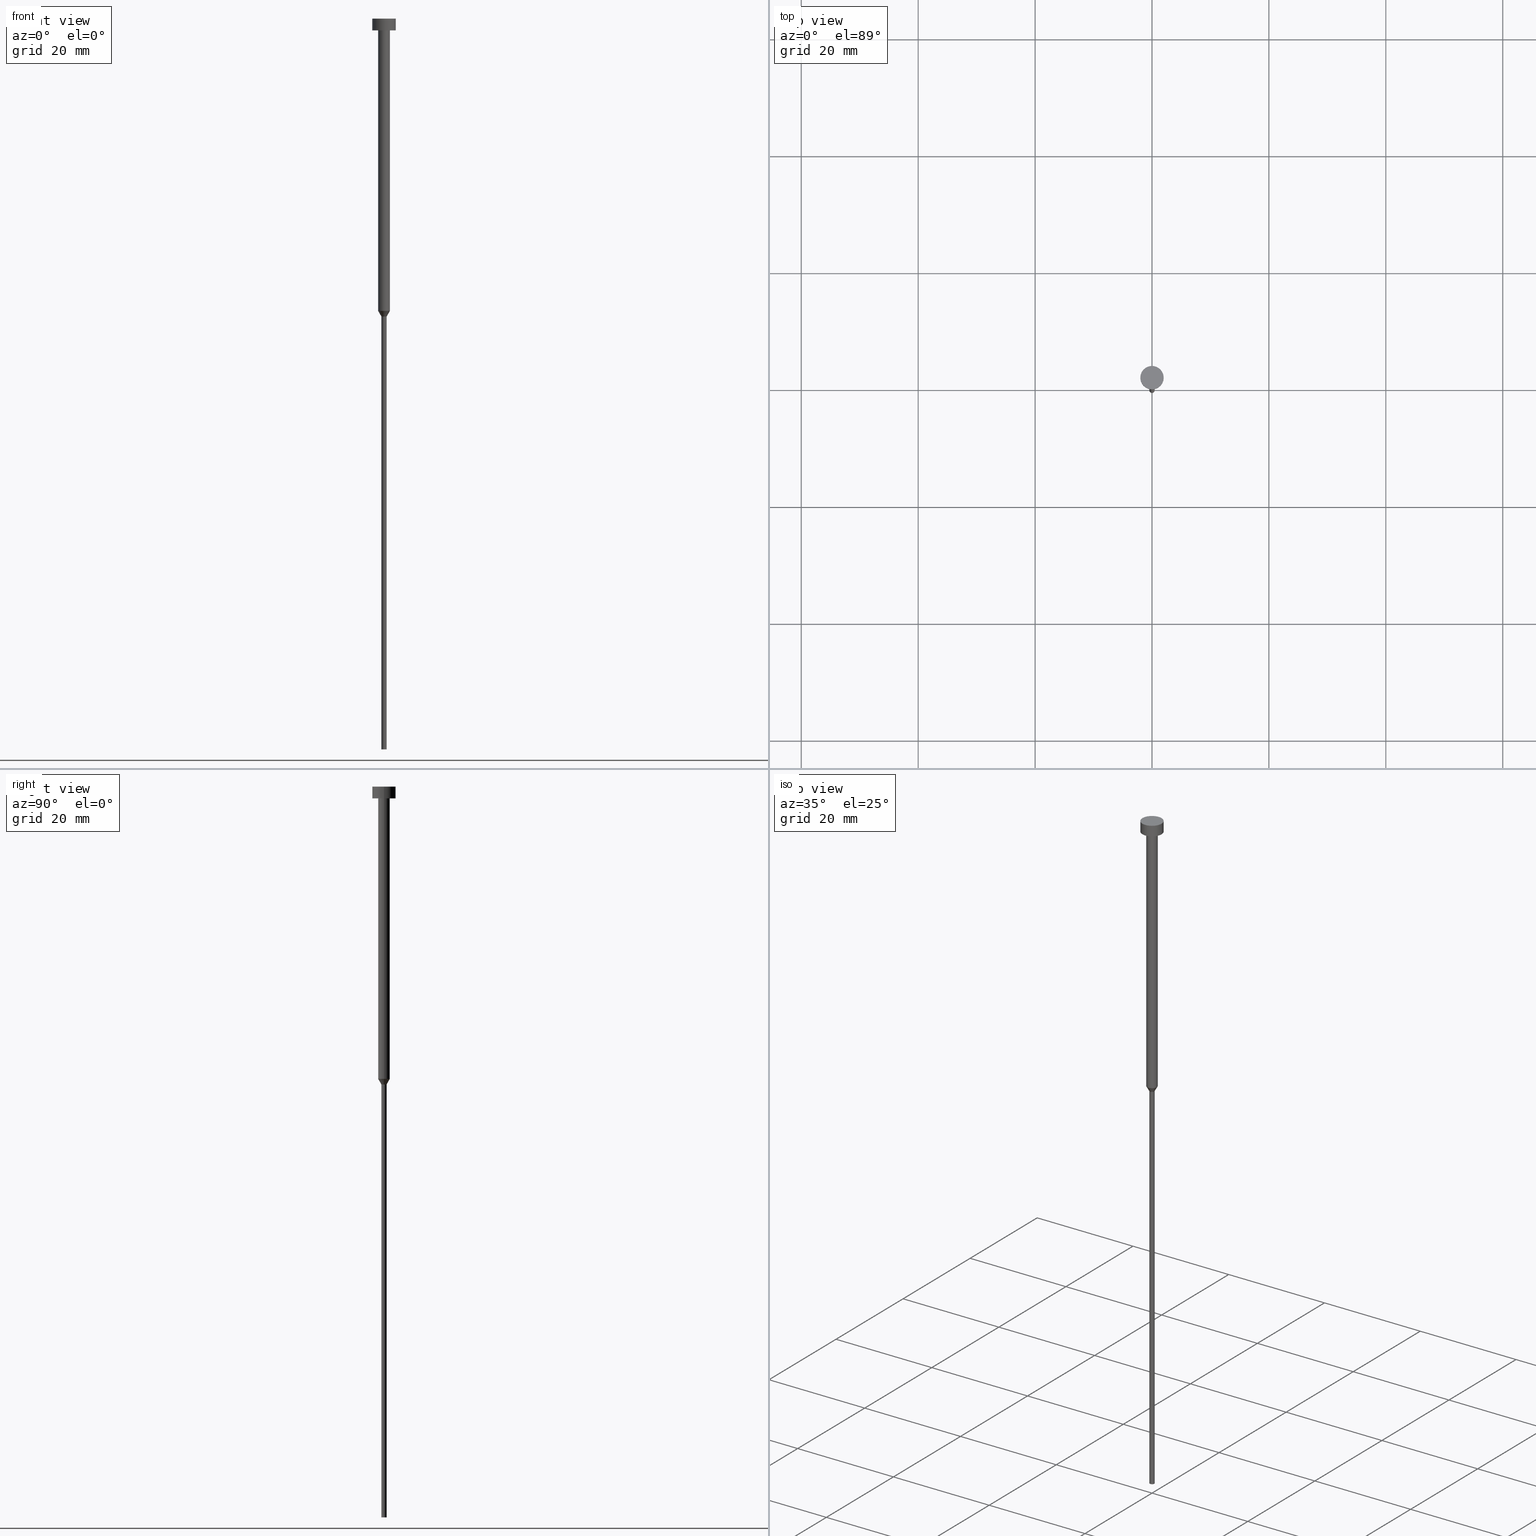
[diagram: canonical four-view strip — front | top / right | iso, engineering-drawing reading convention]
A machine part, canonical four-view strip (front | top / right | iso — engineering-drawing reading convention). The complete STEP part file that produces these views, byte-faithful:
ISO-10303-21;
HEADER;
FILE_DESCRIPTION (( 'STEP AP203' ),
    '1' );
FILE_NAME ('9c05.STEP',
    '2023-02-13T11:53:27',
    ( '' ),
    ( '' ),
    'SwSTEP 2.0',
    'SolidWorks 2019',
    '' );
FILE_SCHEMA (( 'CONFIG_CONTROL_DESIGN' ));
ENDSEC;

DATA;
#1 = CARTESIAN_POINT ( 'NONE',  ( 2.000000000000000000, 0.000000000000000000, -2.000000000000000444 ) ) ;
#2 = CYLINDRICAL_SURFACE ( 'NONE', #251, 0.4500000000000000111 ) ;
#3 = ADVANCED_FACE ( 'NONE', ( #354 ), #291, .T. ) ;
#4 = LOCAL_TIME ( 12, 53, 27.00000000000000000, #175 ) ;
#5 = SHAPE_DEFINITION_REPRESENTATION ( #45, #321 ) ;
#6 = CARTESIAN_POINT ( 'NONE',  ( 0.000000000000000000, 0.000000000000000000, 0.000000000000000000 ) ) ;
#7 = APPROVAL_STATUS ( 'not_yet_approved' ) ;
#8 = DIRECTION ( 'NONE',  ( -0.000000000000000000, -0.000000000000000000, 1.000000000000000000 ) ) ;
#9 = DIRECTION ( 'NONE',  ( -0.000000000000000000, -0.000000000000000000, 1.000000000000000000 ) ) ;
#10 = CC_DESIGN_DATE_AND_TIME_ASSIGNMENT ( #74, #181, ( #21 ) ) ;
#11 = PERSON_AND_ORGANIZATION ( #285, #295 ) ;
#12 = EDGE_LOOP ( 'NONE', ( #198, #261, #325, #340 ) ) ;
#13 = PERSON_AND_ORGANIZATION_ROLE ( 'design_owner' ) ;
#14 = DIRECTION ( 'NONE',  ( 0.000000000000000000, 0.000000000000000000, 1.000000000000000000 ) ) ;
#15 = EDGE_CURVE ( 'NONE', #102, #92, #244, .T. ) ;
#16 = AXIS2_PLACEMENT_3D ( 'NONE', #187, #330, #146 ) ;
#17 = DIRECTION ( 'NONE',  ( -0.000000000000000000, -0.000000000000000000, 1.000000000000000000 ) ) ;
#18 = EDGE_CURVE ( 'NONE', #39, #237, #318, .T. ) ;
#19 = CIRCLE ( 'NONE', #286, 0.4500000000000000111 ) ;
#20 = LINE ( 'NONE', #134, #327 ) ;
#21 = SECURITY_CLASSIFICATION ( '', '', #290 ) ;
#22 = APPROVAL_ROLE ( '' ) ;
#23 = DIRECTION ( 'NONE',  ( 1.000000000000000000, 0.000000000000000000, 0.000000000000000000 ) ) ;
#24 = AXIS2_PLACEMENT_3D ( 'NONE', #76, #71, #177 ) ;
#25 = ORIENTED_EDGE ( 'NONE', *, *, #326, .F. ) ;
#26 = EDGE_CURVE ( 'NONE', #99, #138, #91, .T. ) ;
#27 = LINE ( 'NONE', #83, #69 ) ;
#28 = AXIS2_PLACEMENT_3D ( 'NONE', #336, #95, #282 ) ;
#29 = AXIS2_PLACEMENT_3D ( 'NONE', #220, #332, #334 ) ;
#30 = APPROVAL_ROLE ( '' ) ;
#31 = CARTESIAN_POINT ( 'NONE',  ( 0.000000000000000000, 0.000000000000000000, 0.000000000000000000 ) ) ;
#32 = CARTESIAN_POINT ( 'NONE',  ( 1.000000000000003109, 0.000000000000000000, -50.00000000000000000 ) ) ;
#33 = APPROVAL ( #324, 'NEUR�EN�' ) ;
#34 = DIRECTION ( 'NONE',  ( -0.000000000000000000, -0.000000000000000000, 1.000000000000000000 ) ) ;
#35 = LOCAL_TIME ( 12, 53, 27.00000000000000000, #350 ) ;
#36 = CARTESIAN_POINT ( 'NONE',  ( 1.000000000000003553, 0.000000000000000000, -2.000000000000000444 ) ) ;
#37 = ADVANCED_FACE ( 'NONE', ( #322 ), #73, .T. ) ;
#38 = DIRECTION ( 'NONE',  ( 1.000000000000000000, 0.000000000000000000, 0.000000000000000000 ) ) ;
#39 = VERTEX_POINT ( 'NONE', #233 ) ;
#40 = LINE ( 'NONE', #250, #281 ) ;
#41 = ORIENTED_EDGE ( 'NONE', *, *, #159, .F. ) ;
#42 = PRODUCT ( '9c05', '9c05', '', ( #305 ) ) ;
#43 = CARTESIAN_POINT ( 'NONE',  ( 0.000000000000000000, 0.000000000000000000, -2.000000000000000444 ) ) ;
#44 = ORIENTED_EDGE ( 'NONE', *, *, #147, .F. ) ;
#45 = PRODUCT_DEFINITION_SHAPE ( 'NONE', 'NONE',  #243 ) ;
#46 = EDGE_CURVE ( 'NONE', #138, #99, #289, .T. ) ;
#47 = ORIENTED_EDGE ( 'NONE', *, *, #331, .T. ) ;
#48 = DIRECTION ( 'NONE',  ( 1.000000000000000000, 0.000000000000000000, 0.000000000000000000 ) ) ;
#49 = CARTESIAN_POINT ( 'NONE',  ( -1.000000000000003109, 1.224646799147356905E-16, -50.00000000000000000 ) ) ;
#50 = COORDINATED_UNIVERSAL_TIME_OFFSET ( 1, 0, .AHEAD. ) ;
#51 = VERTEX_POINT ( 'NONE', #128 ) ;
#52 = VERTEX_POINT ( 'NONE', #49 ) ;
#53 = VECTOR ( 'NONE', #58, 999.9999999999998863 ) ;
#54 = FACE_OUTER_BOUND ( 'NONE', #78, .T. ) ;
#55 = ADVANCED_FACE ( 'NONE', ( #346 ), #182, .T. ) ;
#56 = FACE_OUTER_BOUND ( 'NONE', #123, .T. ) ;
#57 = DIRECTION ( 'NONE',  ( 1.000000000000000000, 0.000000000000000000, 0.000000000000000000 ) ) ;
#58 = DIRECTION ( 'NONE',  ( -0.5000000000000014433, 6.123233995736784525E-17, 0.8660254037844379305 ) ) ;
#59 = AXIS2_PLACEMENT_3D ( 'NONE', #90, #14, #38 ) ;
#60 = CARTESIAN_POINT ( 'NONE',  ( 0.000000000000000000, 0.000000000000000000, -50.00000000000000000 ) ) ;
#61 = CIRCLE ( 'NONE', #221, 1.000000000000003553 ) ;
#62 = EDGE_LOOP ( 'NONE', ( #280, #89, #320, #25 ) ) ;
#63 = APPROVAL_STATUS ( 'not_yet_approved' ) ;
#64 = ORIENTED_EDGE ( 'NONE', *, *, #46, .F. ) ;
#65 = CIRCLE ( 'NONE', #139, 2.000000000000000000 ) ;
#66 = CC_DESIGN_SECURITY_CLASSIFICATION ( #21, ( #77 ) ) ;
#67 = CALENDAR_DATE ( 2023, 13, 2 ) ;
#68 = ORIENTED_EDGE ( 'NONE', *, *, #127, .F. ) ;
#69 = VECTOR ( 'NONE', #167, 1000.000000000000000 ) ;
#70 = CC_DESIGN_PERSON_AND_ORGANIZATION_ASSIGNMENT ( #316, #72, ( #77 ) ) ;
#71 = DIRECTION ( 'NONE',  ( -0.000000000000000000, -0.000000000000000000, 1.000000000000000000 ) ) ;
#72 = PERSON_AND_ORGANIZATION_ROLE ( 'design_supplier' ) ;
#73 = CYLINDRICAL_SURFACE ( 'NONE', #333, 2.000000000000000000 ) ;
#74 = DATE_AND_TIME ( #205, #35 ) ;
#75 = EDGE_LOOP ( 'NONE', ( #121, #206, #196, #152 ) ) ;
#76 = CARTESIAN_POINT ( 'NONE',  ( 0.000000000000000000, 0.000000000000000000, 0.000000000000000000 ) ) ;
#77 = PRODUCT_DEFINITION_FORMATION_WITH_SPECIFIED_SOURCE ( 'LIBOVOLN�', '', #42, .NOT_KNOWN. ) ;
#78 = EDGE_LOOP ( 'NONE', ( #253, #47, #309, #293 ) ) ;
#79 = APPLICATION_CONTEXT ( 'configuration controlled 3d designs of mechanical parts and assemblies' ) ;
#80 = AXIS2_PLACEMENT_3D ( 'NONE', #207, #157, #105 ) ;
#81 = DIRECTION ( 'NONE',  ( 1.000000000000000000, 0.000000000000000000, 0.000000000000000000 ) ) ;
#82 = EDGE_CURVE ( 'NONE', #103, #348, #61, .T. ) ;
#83 = CARTESIAN_POINT ( 'NONE',  ( -1.000000000000003331, 1.224646799147357151E-16, 0.000000000000000000 ) ) ;
#84 = FACE_OUTER_BOUND ( 'NONE', #75, .T. ) ;
#85 = DIRECTION ( 'NONE',  ( 1.000000000000000000, 0.000000000000000000, 0.000000000000000000 ) ) ;
#86 = DIRECTION ( 'NONE',  ( -0.000000000000000000, -0.000000000000000000, 1.000000000000000000 ) ) ;
#87 = EDGE_CURVE ( 'NONE', #138, #92, #20, .T. ) ;
#88 = DIRECTION ( 'NONE',  ( -0.000000000000000000, -0.000000000000000000, 1.000000000000000000 ) ) ;
#89 = ORIENTED_EDGE ( 'NONE', *, *, #163, .T. ) ;
#90 = CARTESIAN_POINT ( 'NONE',  ( 0.000000000000000000, 0.000000000000000000, 0.000000000000000000 ) ) ;
#91 = CIRCLE ( 'NONE', #137, 2.000000000000000000 ) ;
#92 = VERTEX_POINT ( 'NONE', #238 ) ;
#93 = CC_DESIGN_DATE_AND_TIME_ASSIGNMENT ( #203, #258, ( #243 ) ) ;
#94 =( GEOMETRIC_REPRESENTATION_CONTEXT ( 3 ) GLOBAL_UNCERTAINTY_ASSIGNED_CONTEXT ( ( #217 ) ) GLOBAL_UNIT_ASSIGNED_CONTEXT ( ( #149, #116, #284 ) ) REPRESENTATION_CONTEXT ( 'NONE', 'WORKASPACE' ) );
#95 = DIRECTION ( 'NONE',  ( 0.000000000000000000, 0.000000000000000000, -1.000000000000000000 ) ) ;
#96 = VERTEX_POINT ( 'NONE', #352 ) ;
#97 = EDGE_CURVE ( 'NONE', #51, #164, #104, .T. ) ;
#98 = CLOSED_SHELL ( 'NONE', ( #216, #55, #234, #108, #279, #223, #114, #239, #256, #37, #3 ) ) ;
#99 = VERTEX_POINT ( 'NONE', #1 ) ;
#100 = PERSON_AND_ORGANIZATION ( #285, #295 ) ;
#101 = VECTOR ( 'NONE', #197, 1000.000000000000000 ) ;
#102 = VERTEX_POINT ( 'NONE', #166 ) ;
#103 = VERTEX_POINT ( 'NONE', #36 ) ;
#104 = LINE ( 'NONE', #32, #212 ) ;
#105 = DIRECTION ( 'NONE',  ( 1.000000000000000000, 0.000000000000000000, 0.000000000000000000 ) ) ;
#106 = APPROVAL_PERSON_ORGANIZATION ( #292, #299, #30 ) ;
#107 = DIRECTION ( 'NONE',  ( 1.000000000000000000, 0.000000000000000000, 0.000000000000000000 ) ) ;
#108 = ADVANCED_FACE ( 'NONE', ( #54 ), #191, .T. ) ;
#109 = CYLINDRICAL_SURFACE ( 'NONE', #117, 2.000000000000000000 ) ;
#110 = DIRECTION ( 'NONE',  ( -0.000000000000000000, -0.000000000000000000, 1.000000000000000000 ) ) ;
#111 = APPLICATION_CONTEXT ( 'configuration controlled 3d designs of mechanical parts and assemblies' ) ;
#112 = DESIGN_CONTEXT ( 'detailed design', #111, 'design' ) ;
#113 = CARTESIAN_POINT ( 'NONE',  ( 0.000000000000000000, 0.000000000000000000, -50.95262794416288443 ) ) ;
#114 = ADVANCED_FACE ( 'NONE', ( #56 ), #154, .T. ) ;
#115 = DIRECTION ( 'NONE',  ( -0.000000000000000000, -0.000000000000000000, 1.000000000000000000 ) ) ;
#116 =( NAMED_UNIT ( * ) PLANE_ANGLE_UNIT ( ) SI_UNIT ( $, .RADIAN. ) );
#117 = AXIS2_PLACEMENT_3D ( 'NONE', #31, #86, #269 ) ;
#118 = LOCAL_TIME ( 12, 53, 27.00000000000000000, #50 ) ;
#119 = APPLICATION_PROTOCOL_DEFINITION ( 'international standard', 'config_control_design', 1994, #111 ) ;
#120 = PERSON_AND_ORGANIZATION ( #285, #295 ) ;
#121 = ORIENTED_EDGE ( 'NONE', *, *, #163, .F. ) ;
#122 = COORDINATED_UNIVERSAL_TIME_OFFSET ( 1, 0, .AHEAD. ) ;
#123 = EDGE_LOOP ( 'NONE', ( #183, #310, #148, #41 ) ) ;
#124 = AXIS2_PLACEMENT_3D ( 'NONE', #43, #125, #230 ) ;
#125 = DIRECTION ( 'NONE',  ( -0.000000000000000000, -0.000000000000000000, 1.000000000000000000 ) ) ;
#126 = ORIENTED_EDGE ( 'NONE', *, *, #135, .F. ) ;
#127 = EDGE_CURVE ( 'NONE', #96, #51, #19, .T. ) ;
#128 = CARTESIAN_POINT ( 'NONE',  ( 0.4500000000000000111, 0.000000000000000000, -50.95262794416288443 ) ) ;
#129 = AXIS2_PLACEMENT_3D ( 'NONE', #202, #266, #315 ) ;
#130 = PERSON_AND_ORGANIZATION ( #285, #295 ) ;
#131 = ORIENTED_EDGE ( 'NONE', *, *, #15, .F. ) ;
#132 = PERSON_AND_ORGANIZATION ( #285, #295 ) ;
#133 = CC_DESIGN_APPROVAL ( #33, ( #77 ) ) ;
#134 = CARTESIAN_POINT ( 'NONE',  ( -2.000000000000000000, 2.449293598294706414E-16, 0.000000000000000000 ) ) ;
#135 = EDGE_CURVE ( 'NONE', #99, #102, #188, .T. ) ;
#136 = CARTESIAN_POINT ( 'NONE',  ( 0.000000000000000000, 0.000000000000000000, -125.0000000000000000 ) ) ;
#137 = AXIS2_PLACEMENT_3D ( 'NONE', #185, #204, #23 ) ;
#138 = VERTEX_POINT ( 'NONE', #242 ) ;
#139 = AXIS2_PLACEMENT_3D ( 'NONE', #329, #8, #57 ) ;
#140 = CC_DESIGN_PERSON_AND_ORGANIZATION_ASSIGNMENT ( #100, #156, ( #243 ) ) ;
#141 = DIRECTION ( 'NONE',  ( 0.5000000000000014433, 0.000000000000000000, 0.8660254037844379305 ) ) ;
#142 = DIRECTION ( 'NONE',  ( 1.000000000000000000, 0.000000000000000000, 0.000000000000000000 ) ) ;
#143 = DIRECTION ( 'NONE',  ( -0.000000000000000000, -0.000000000000000000, 1.000000000000000000 ) ) ;
#144 = CARTESIAN_POINT ( 'NONE',  ( 0.000000000000000000, 0.000000000000000000, 0.000000000000000000 ) ) ;
#145 = APPROVAL_PERSON_ORGANIZATION ( #120, #186, #170 ) ;
#146 = DIRECTION ( 'NONE',  ( 1.000000000000000000, 0.000000000000000000, 0.000000000000000000 ) ) ;
#147 = EDGE_CURVE ( 'NONE', #92, #102, #65, .T. ) ;
#148 = ORIENTED_EDGE ( 'NONE', *, *, #97, .T. ) ;
#149 =( LENGTH_UNIT ( ) NAMED_UNIT ( * ) SI_UNIT ( .MILLI., .METRE. ) );
#150 = AXIS2_PLACEMENT_3D ( 'NONE', #136, #235, #210 ) ;
#151 = LINE ( 'NONE', #199, #193 ) ;
#152 = ORIENTED_EDGE ( 'NONE', *, *, #307, .F. ) ;
#153 = DIRECTION ( 'NONE',  ( 1.000000000000000000, 0.000000000000000000, 0.000000000000000000 ) ) ;
#154 = CONICAL_SURFACE ( 'NONE', #353, 1.000000000000003109, 0.5235987755983005920 ) ;
#155 = AXIS2_PLACEMENT_3D ( 'NONE', #224, #275, #308 ) ;
#156 = PERSON_AND_ORGANIZATION_ROLE ( 'creator' ) ;
#157 = DIRECTION ( 'NONE',  ( -0.000000000000000000, -0.000000000000000000, 1.000000000000000000 ) ) ;
#158 = DIRECTION ( 'NONE',  ( 1.000000000000000000, 0.000000000000000000, 0.000000000000000000 ) ) ;
#159 = EDGE_CURVE ( 'NONE', #52, #164, #335, .T. ) ;
#160 = APPROVAL_PERSON_ORGANIZATION ( #208, #33, #22 ) ;
#161 = DIRECTION ( 'NONE',  ( -0.000000000000000000, -0.000000000000000000, 1.000000000000000000 ) ) ;
#162 = ORIENTED_EDGE ( 'NONE', *, *, #46, .T. ) ;
#163 = EDGE_CURVE ( 'NONE', #52, #348, #27, .T. ) ;
#164 = VERTEX_POINT ( 'NONE', #355 ) ;
#165 = FACE_OUTER_BOUND ( 'NONE', #345, .T. ) ;
#166 = CARTESIAN_POINT ( 'NONE',  ( 2.000000000000000000, 0.000000000000000000, -2.449293598294705921E-16 ) ) ;
#167 = DIRECTION ( 'NONE',  ( -0.000000000000000000, -0.000000000000000000, 1.000000000000000000 ) ) ;
#168 = DIRECTION ( 'NONE',  ( 1.000000000000000000, 0.000000000000000000, 0.000000000000000000 ) ) ;
#169 = CARTESIAN_POINT ( 'NONE',  ( -0.4500000000000000111, 5.510910596163088939E-17, -125.0000000000000000 ) ) ;
#170 = APPROVAL_ROLE ( '' ) ;
#171 = EDGE_LOOP ( 'NONE', ( #339, #174 ) ) ;
#172 = CIRCLE ( 'NONE', #349, 0.4500000000000000111 ) ;
#173 = DIRECTION ( 'NONE',  ( -0.000000000000000000, -0.000000000000000000, 1.000000000000000000 ) ) ;
#174 = ORIENTED_EDGE ( 'NONE', *, *, #307, .T. ) ;
#175 = COORDINATED_UNIVERSAL_TIME_OFFSET ( 1, 0, .AHEAD. ) ;
#176 = EDGE_LOOP ( 'NONE', ( #180, #306 ) ) ;
#177 = DIRECTION ( 'NONE',  ( 1.000000000000000000, 0.000000000000000000, 0.000000000000000000 ) ) ;
#178 = PRODUCT_RELATED_PRODUCT_CATEGORY ( 'detail', '', ( #42 ) ) ;
#179 = DATE_AND_TIME ( #262, #4 ) ;
#180 = ORIENTED_EDGE ( 'NONE', *, *, #18, .F. ) ;
#181 = DATE_TIME_ROLE ( 'classification_date' ) ;
#182 = CYLINDRICAL_SURFACE ( 'NONE', #24, 1.000000000000003331 ) ;
#183 = ORIENTED_EDGE ( 'NONE', *, *, #190, .F. ) ;
#184 = COORDINATED_UNIVERSAL_TIME_OFFSET ( 1, 0, .AHEAD. ) ;
#185 = CARTESIAN_POINT ( 'NONE',  ( 0.000000000000000000, 0.000000000000000000, -2.000000000000000444 ) ) ;
#186 = APPROVAL ( #63, 'NEUR�EN�' ) ;
#187 = CARTESIAN_POINT ( 'NONE',  ( 0.000000000000000000, 0.000000000000000000, -50.00000000000000000 ) ) ;
#188 = LINE ( 'NONE', #192, #215 ) ;
#189 = CIRCLE ( 'NONE', #124, 1.000000000000003553 ) ;
#190 = EDGE_CURVE ( 'NONE', #96, #52, #302, .T. ) ;
#191 = CYLINDRICAL_SURFACE ( 'NONE', #303, 0.4500000000000000111 ) ;
#192 = CARTESIAN_POINT ( 'NONE',  ( 2.000000000000000000, 0.000000000000000000, 0.000000000000000000 ) ) ;
#193 = VECTOR ( 'NONE', #88, 1000.000000000000000 ) ;
#194 = CC_DESIGN_PERSON_AND_ORGANIZATION_ASSIGNMENT ( #11, #13, ( #42 ) ) ;
#195 = APPLICATION_PROTOCOL_DEFINITION ( 'international standard', 'config_control_design', 1994, #79 ) ;
#196 = ORIENTED_EDGE ( 'NONE', *, *, #326, .T. ) ;
#197 = DIRECTION ( 'NONE',  ( -0.000000000000000000, -0.000000000000000000, 1.000000000000000000 ) ) ;
#198 = ORIENTED_EDGE ( 'NONE', *, *, #226, .T. ) ;
#199 = CARTESIAN_POINT ( 'NONE',  ( 1.000000000000003331, 0.000000000000000000, 0.000000000000000000 ) ) ;
#200 = CARTESIAN_POINT ( 'NONE',  ( 0.000000000000000000, 0.000000000000000000, -125.0000000000000000 ) ) ;
#201 = EDGE_LOOP ( 'NONE', ( #297, #277 ) ) ;
#202 = CARTESIAN_POINT ( 'NONE',  ( 0.000000000000000000, 0.000000000000000000, -2.000000000000000444 ) ) ;
#203 = DATE_AND_TIME ( #296, #118 ) ;
#204 = DIRECTION ( 'NONE',  ( -0.000000000000000000, -0.000000000000000000, 1.000000000000000000 ) ) ;
#205 = CALENDAR_DATE ( 2023, 13, 2 ) ;
#206 = ORIENTED_EDGE ( 'NONE', *, *, #159, .T. ) ;
#207 = CARTESIAN_POINT ( 'NONE',  ( 0.000000000000000000, 0.000000000000000000, -2.449293598294705921E-16 ) ) ;
#208 = PERSON_AND_ORGANIZATION ( #285, #295 ) ;
#209 = CIRCLE ( 'NONE', #229, 1.000000000000003109 ) ;
#210 = DIRECTION ( 'NONE',  ( 1.000000000000000000, 0.000000000000000000, 0.000000000000000000 ) ) ;
#211 = CARTESIAN_POINT ( 'NONE',  ( 0.000000000000000000, 0.000000000000000000, -50.00000000000000000 ) ) ;
#212 = VECTOR ( 'NONE', #141, 999.9999999999998863 ) ;
#213 = DATE_AND_TIME ( #245, #268 ) ;
#214 = CARTESIAN_POINT ( 'NONE',  ( 0.000000000000000000, 0.000000000000000000, -50.95262794416288443 ) ) ;
#215 = VECTOR ( 'NONE', #304, 1000.000000000000000 ) ;
#216 = ADVANCED_FACE ( 'NONE', ( #270 ), #109, .T. ) ;
#217 = UNCERTAINTY_MEASURE_WITH_UNIT (LENGTH_MEASURE( 1.000000000000000082E-05 ), #149, 'distance_accuracy_value', 'NONE');
#218 = DIRECTION ( 'NONE',  ( -0.000000000000000000, -0.000000000000000000, 1.000000000000000000 ) ) ;
#219 = CONICAL_SURFACE ( 'NONE', #16, 1.000000000000003109, 0.5235987755983005920 ) ;
#220 = CARTESIAN_POINT ( 'NONE',  ( 0.000000000000000000, 0.000000000000000000, 0.000000000000000000 ) ) ;
#221 = AXIS2_PLACEMENT_3D ( 'NONE', #288, #17, #158 ) ;
#222 = FACE_OUTER_BOUND ( 'NONE', #12, .T. ) ;
#223 = ADVANCED_FACE ( 'NONE', ( #246 ), #2, .T. ) ;
#224 = CARTESIAN_POINT ( 'NONE',  ( 0.000000000000000000, -2.000000000000000000, -2.000000000000000444 ) ) ;
#225 = PLANE ( 'NONE',  #28 ) ;
#226 = EDGE_CURVE ( 'NONE', #51, #96, #267, .T. ) ;
#227 = APPROVAL_DATE_TIME ( #278, #186 ) ;
#228 = ORIENTED_EDGE ( 'NONE', *, *, #313, .T. ) ;
#229 = AXIS2_PLACEMENT_3D ( 'NONE', #211, #115, #85 ) ;
#230 = DIRECTION ( 'NONE',  ( 1.000000000000000000, 0.000000000000000000, 0.000000000000000000 ) ) ;
#231 = ORIENTED_EDGE ( 'NONE', *, *, #338, .T. ) ;
#232 = AXIS2_PLACEMENT_3D ( 'NONE', #240, #263, #351 ) ;
#233 = CARTESIAN_POINT ( 'NONE',  ( 0.4500000000000000111, 0.000000000000000000, -125.0000000000000000 ) ) ;
#234 = ADVANCED_FACE ( 'NONE', ( #222 ), #219, .T. ) ;
#235 = DIRECTION ( 'NONE',  ( -0.000000000000000000, -0.000000000000000000, 1.000000000000000000 ) ) ;
#236 = PERSON_AND_ORGANIZATION_ROLE ( 'classification_officer' ) ;
#237 = VERTEX_POINT ( 'NONE', #169 ) ;
#238 = CARTESIAN_POINT ( 'NONE',  ( -2.000000000000000000, 2.449293598294706414E-16, -2.449293598294705921E-16 ) ) ;
#239 = ADVANCED_FACE ( 'NONE', ( #84 ), #301, .T. ) ;
#240 = CARTESIAN_POINT ( 'NONE',  ( 0.000000000000000000, 0.000000000000000000, -1.224646799147352961E-16 ) ) ;
#241 = DIRECTION ( 'NONE',  ( 1.000000000000000000, 0.000000000000000000, 0.000000000000000000 ) ) ;
#242 = CARTESIAN_POINT ( 'NONE',  ( -2.000000000000000000, 2.449293598294706414E-16, -2.000000000000000444 ) ) ;
#243 = PRODUCT_DEFINITION ( 'NEZN�M�', '', #77, #112 ) ;
#244 = CIRCLE ( 'NONE', #80, 2.000000000000000000 ) ;
#245 = CALENDAR_DATE ( 2023, 13, 2 ) ;
#246 = FACE_OUTER_BOUND ( 'NONE', #312, .T. ) ;
#247 = CARTESIAN_POINT ( 'NONE',  ( -1.000000000000003109, 1.224646799147356905E-16, -50.00000000000000000 ) ) ;
#248 = DIRECTION ( 'NONE',  ( -0.000000000000000000, -0.000000000000000000, 1.000000000000000000 ) ) ;
#249 = EDGE_CURVE ( 'NONE', #164, #52, #209, .T. ) ;
#250 = CARTESIAN_POINT ( 'NONE',  ( -0.4500000000000000111, 5.510910596163088939E-17, 0.000000000000000000 ) ) ;
#251 = AXIS2_PLACEMENT_3D ( 'NONE', #6, #110, #81 ) ;
#252 = PLANE ( 'NONE',  #155 ) ;
#253 = ORIENTED_EDGE ( 'NONE', *, *, #18, .T. ) ;
#254 = CARTESIAN_POINT ( 'NONE',  ( -1.000000000000003553, 1.224646799147357398E-16, -2.000000000000000444 ) ) ;
#255 = ORIENTED_EDGE ( 'NONE', *, *, #26, .F. ) ;
#256 = ADVANCED_FACE ( 'NONE', ( #300, #165 ), #252, .T. ) ;
#257 = ORIENTED_EDGE ( 'NONE', *, *, #331, .F. ) ;
#258 = DATE_TIME_ROLE ( 'creation_date' ) ;
#259 = ORIENTED_EDGE ( 'NONE', *, *, #87, .F. ) ;
#260 = AXIS2_PLACEMENT_3D ( 'NONE', #60, #34, #142 ) ;
#261 = ORIENTED_EDGE ( 'NONE', *, *, #190, .T. ) ;
#262 = CALENDAR_DATE ( 2023, 13, 2 ) ;
#263 = DIRECTION ( 'NONE',  ( 0.000000000000000000, -0.000000000000000000, 1.000000000000000000 ) ) ;
#264 = ORIENTED_EDGE ( 'NONE', *, *, #26, .T. ) ;
#265 = APPROVAL_DATE_TIME ( #213, #299 ) ;
#266 = DIRECTION ( 'NONE',  ( -0.000000000000000000, -0.000000000000000000, 1.000000000000000000 ) ) ;
#267 = CIRCLE ( 'NONE', #323, 0.4500000000000000111 ) ;
#268 = LOCAL_TIME ( 12, 53, 27.00000000000000000, #184 ) ;
#269 = DIRECTION ( 'NONE',  ( 1.000000000000000000, 0.000000000000000000, 0.000000000000000000 ) ) ;
#270 = FACE_OUTER_BOUND ( 'NONE', #337, .T. ) ;
#271 = MANIFOLD_SOLID_BREP ( 'Rotovat1', #98 ) ;
#272 = CARTESIAN_POINT ( 'NONE',  ( 0.000000000000000000, 0.000000000000000000, -50.00000000000000000 ) ) ;
#273 = DIRECTION ( 'NONE',  ( 1.000000000000000000, 0.000000000000000000, 0.000000000000000000 ) ) ;
#274 = CC_DESIGN_APPROVAL ( #299, ( #21 ) ) ;
#275 = DIRECTION ( 'NONE',  ( 0.000000000000000000, 0.000000000000000000, -1.000000000000000000 ) ) ;
#276 = LINE ( 'NONE', #344, #101 ) ;
#277 = ORIENTED_EDGE ( 'NONE', *, *, #147, .T. ) ;
#278 = DATE_AND_TIME ( #67, #311 ) ;
#279 = ADVANCED_FACE ( 'NONE', ( #341 ), #225, .T. ) ;
#280 = ORIENTED_EDGE ( 'NONE', *, *, #249, .T. ) ;
#281 = VECTOR ( 'NONE', #9, 1000.000000000000000 ) ;
#282 = DIRECTION ( 'NONE',  ( -1.000000000000000000, 0.000000000000000000, -0.000000000000000000 ) ) ;
#283 = ORIENTED_EDGE ( 'NONE', *, *, #135, .T. ) ;
#284 =( NAMED_UNIT ( * ) SI_UNIT ( $, .STERADIAN. ) SOLID_ANGLE_UNIT ( ) );
#285 = PERSON ( 'NEUR�EN�', 'NEUR�EN�', 'NEUR�EN�', ('NEUR�EN�'), ('NEUR�EN�'), ('NEUR�EN�') ) ;
#286 = AXIS2_PLACEMENT_3D ( 'NONE', #214, #328, #168 ) ;
#287 = EDGE_LOOP ( 'NONE', ( #259, #162, #283, #44 ) ) ;
#288 = CARTESIAN_POINT ( 'NONE',  ( 0.000000000000000000, 0.000000000000000000, -2.000000000000000444 ) ) ;
#289 = CIRCLE ( 'NONE', #129, 2.000000000000000000 ) ;
#290 = SECURITY_CLASSIFICATION_LEVEL ( 'unclassified' ) ;
#291 = PLANE ( 'NONE',  #232 ) ;
#292 = PERSON_AND_ORGANIZATION ( #285, #295 ) ;
#293 = ORIENTED_EDGE ( 'NONE', *, *, #313, .F. ) ;
#294 = CC_DESIGN_PERSON_AND_ORGANIZATION_ASSIGNMENT ( #132, #236, ( #21 ) ) ;
#295 = ORGANIZATION ( 'NEUR�EN�', 'NEUR�EN�', '' ) ;
#296 = CALENDAR_DATE ( 2023, 13, 2 ) ;
#297 = ORIENTED_EDGE ( 'NONE', *, *, #15, .T. ) ;
#298 = CARTESIAN_POINT ( 'NONE',  ( 0.000000000000000000, 0.000000000000000000, 0.000000000000000000 ) ) ;
#299 = APPROVAL ( #7, 'NEUR�EN�' ) ;
#300 = FACE_BOUND ( 'NONE', #171, .T. ) ;
#301 = CYLINDRICAL_SURFACE ( 'NONE', #29, 1.000000000000003331 ) ;
#302 = LINE ( 'NONE', #247, #53 ) ;
#303 = AXIS2_PLACEMENT_3D ( 'NONE', #144, #143, #241 ) ;
#304 = DIRECTION ( 'NONE',  ( -0.000000000000000000, -0.000000000000000000, 1.000000000000000000 ) ) ;
#305 = MECHANICAL_CONTEXT ( 'NONE', #79, 'mechanical' ) ;
#306 = ORIENTED_EDGE ( 'NONE', *, *, #338, .F. ) ;
#307 = EDGE_CURVE ( 'NONE', #348, #103, #189, .T. ) ;
#308 = DIRECTION ( 'NONE',  ( -1.000000000000000000, 0.000000000000000000, -0.000000000000000000 ) ) ;
#309 = ORIENTED_EDGE ( 'NONE', *, *, #226, .F. ) ;
#310 = ORIENTED_EDGE ( 'NONE', *, *, #127, .T. ) ;
#311 = LOCAL_TIME ( 12, 53, 27.00000000000000000, #122 ) ;
#312 = EDGE_LOOP ( 'NONE', ( #257, #231, #228, #68 ) ) ;
#313 = EDGE_CURVE ( 'NONE', #39, #51, #276, .T. ) ;
#314 = APPROVAL_DATE_TIME ( #179, #33 ) ;
#315 = DIRECTION ( 'NONE',  ( 1.000000000000000000, 0.000000000000000000, 0.000000000000000000 ) ) ;
#316 = PERSON_AND_ORGANIZATION ( #285, #295 ) ;
#317 = DIRECTION ( 'NONE',  ( -0.000000000000000000, -0.000000000000000000, 1.000000000000000000 ) ) ;
#318 = CIRCLE ( 'NONE', #150, 0.4500000000000000111 ) ;
#319 = CC_DESIGN_PERSON_AND_ORGANIZATION_ASSIGNMENT ( #130, #347, ( #77 ) ) ;
#320 = ORIENTED_EDGE ( 'NONE', *, *, #82, .F. ) ;
#321 = ADVANCED_BREP_SHAPE_REPRESENTATION ( '9c05', ( #271, #59 ), #94 ) ;
#322 = FACE_OUTER_BOUND ( 'NONE', #287, .T. ) ;
#323 = AXIS2_PLACEMENT_3D ( 'NONE', #113, #218, #107 ) ;
#324 = APPROVAL_STATUS ( 'not_yet_approved' ) ;
#325 = ORIENTED_EDGE ( 'NONE', *, *, #249, .F. ) ;
#326 = EDGE_CURVE ( 'NONE', #164, #103, #151, .T. ) ;
#327 = VECTOR ( 'NONE', #161, 1000.000000000000000 ) ;
#328 = DIRECTION ( 'NONE',  ( -0.000000000000000000, -0.000000000000000000, 1.000000000000000000 ) ) ;
#329 = CARTESIAN_POINT ( 'NONE',  ( 0.000000000000000000, 0.000000000000000000, -2.449293598294705921E-16 ) ) ;
#330 = DIRECTION ( 'NONE',  ( -0.000000000000000000, -0.000000000000000000, 1.000000000000000000 ) ) ;
#331 = EDGE_CURVE ( 'NONE', #237, #96, #40, .T. ) ;
#332 = DIRECTION ( 'NONE',  ( -0.000000000000000000, -0.000000000000000000, 1.000000000000000000 ) ) ;
#333 = AXIS2_PLACEMENT_3D ( 'NONE', #298, #317, #48 ) ;
#334 = DIRECTION ( 'NONE',  ( 1.000000000000000000, 0.000000000000000000, 0.000000000000000000 ) ) ;
#335 = CIRCLE ( 'NONE', #260, 1.000000000000003109 ) ;
#336 = CARTESIAN_POINT ( 'NONE',  ( 0.000000000000000000, 0.000000000000000000, -125.0000000000000000 ) ) ;
#337 = EDGE_LOOP ( 'NONE', ( #264, #342, #131, #126 ) ) ;
#338 = EDGE_CURVE ( 'NONE', #237, #39, #172, .T. ) ;
#339 = ORIENTED_EDGE ( 'NONE', *, *, #82, .T. ) ;
#340 = ORIENTED_EDGE ( 'NONE', *, *, #97, .F. ) ;
#341 = FACE_OUTER_BOUND ( 'NONE', #176, .T. ) ;
#342 = ORIENTED_EDGE ( 'NONE', *, *, #87, .T. ) ;
#343 = CC_DESIGN_APPROVAL ( #186, ( #243 ) ) ;
#344 = CARTESIAN_POINT ( 'NONE',  ( 0.4500000000000000111, 0.000000000000000000, 0.000000000000000000 ) ) ;
#345 = EDGE_LOOP ( 'NONE', ( #255, #64 ) ) ;
#346 = FACE_OUTER_BOUND ( 'NONE', #62, .T. ) ;
#347 = PERSON_AND_ORGANIZATION_ROLE ( 'creator' ) ;
#348 = VERTEX_POINT ( 'NONE', #254 ) ;
#349 = AXIS2_PLACEMENT_3D ( 'NONE', #200, #173, #153 ) ;
#350 = COORDINATED_UNIVERSAL_TIME_OFFSET ( 1, 0, .AHEAD. ) ;
#351 = DIRECTION ( 'NONE',  ( 1.000000000000000000, 0.000000000000000000, 0.000000000000000000 ) ) ;
#352 = CARTESIAN_POINT ( 'NONE',  ( -0.4500000000000000111, 5.510910596163088939E-17, -50.95262794416288443 ) ) ;
#353 = AXIS2_PLACEMENT_3D ( 'NONE', #272, #248, #273 ) ;
#354 = FACE_OUTER_BOUND ( 'NONE', #201, .T. ) ;
#355 = CARTESIAN_POINT ( 'NONE',  ( 1.000000000000003109, 0.000000000000000000, -50.00000000000000000 ) ) ;
ENDSEC;
END-ISO-10303-21;
